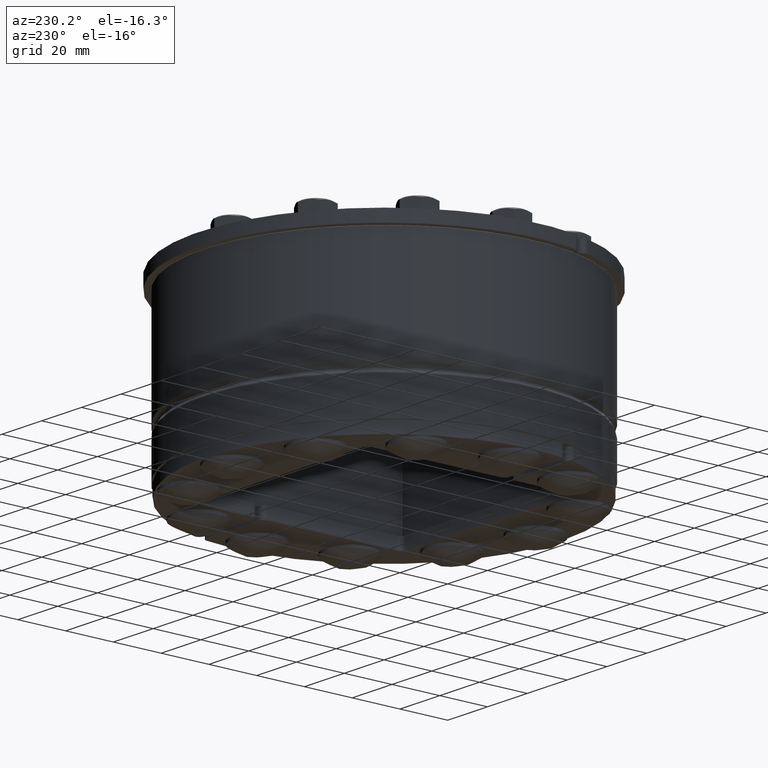
[diagram: clean part render]
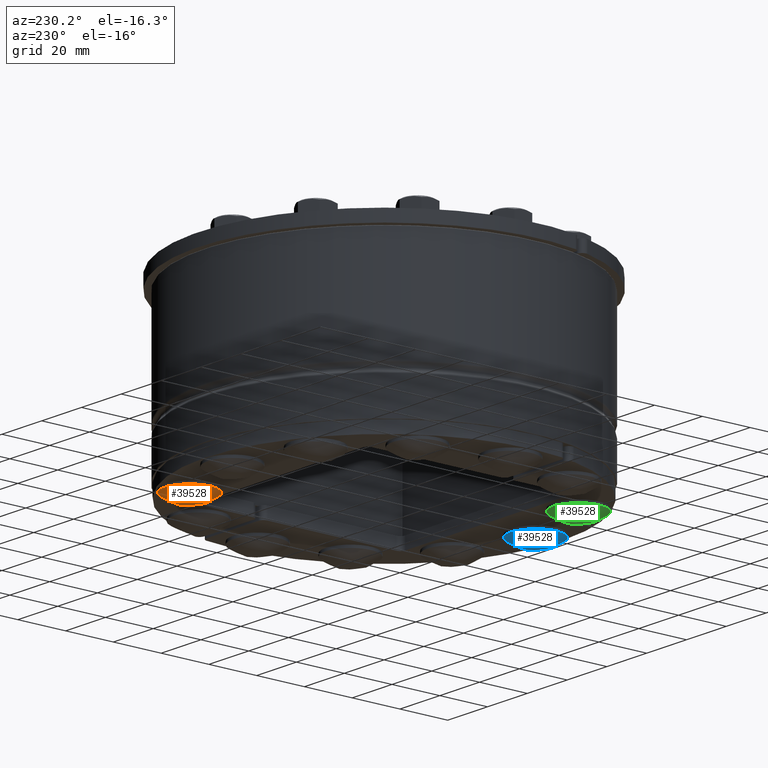
[diagram: same view with three faces highlighted in distinct colors, each labeled with its STEP entity id]
A machine part, auxiliary view with three faces highlighted in distinct colors.
Their STEP definitions:

[orange] entity #39528 — the highlighted spherical surface has radius 16 mm.
#39512=CARTESIAN_POINT('',(11.120000000000005,0.0,0.0));
#39513=DIRECTION('',(0.0,0.0,1.0));
#39514=DIRECTION('',(1.0,0.0,0.0));
#39515=AXIS2_PLACEMENT_3D('',#39512,#39513,#39514);
#39516=SPHERICAL_SURFACE('',#39515,16.000000000000004);
#39517=CARTESIAN_POINT('',(-1.102699169986955,10.325000000000003,0.0));
#39518=VERTEX_POINT('',#39517);
#39519=CARTESIAN_POINT('',(-1.102699169986963,4.389809E-033,0.0));
#39520=DIRECTION('',(1.0,0.0,0.0));
#39521=DIRECTION('',(0.0,1.0,0.0));
#39522=AXIS2_PLACEMENT_3D('',#39519,#39520,#39521);
#39523=CIRCLE('',#39522,10.325000000000003);
#39524=EDGE_CURVE('',#39518,#39518,#39523,.T.);
#39525=ORIENTED_EDGE('',*,*,#39524,.F.);
#39526=EDGE_LOOP('',(#39525));
#39527=FACE_OUTER_BOUND('',#39526,.T.);
#39528=ADVANCED_FACE('',(#39527),#39516,.T.);

[blue] entity #39528 — the highlighted spherical surface has radius 16 mm.
#39512=CARTESIAN_POINT('',(11.120000000000005,0.0,0.0));
#39513=DIRECTION('',(0.0,0.0,1.0));
#39514=DIRECTION('',(1.0,0.0,0.0));
#39515=AXIS2_PLACEMENT_3D('',#39512,#39513,#39514);
#39516=SPHERICAL_SURFACE('',#39515,16.000000000000004);
#39517=CARTESIAN_POINT('',(-1.102699169986955,10.325000000000003,0.0));
#39518=VERTEX_POINT('',#39517);
#39519=CARTESIAN_POINT('',(-1.102699169986963,4.389809E-033,0.0));
#39520=DIRECTION('',(1.0,0.0,0.0));
#39521=DIRECTION('',(0.0,1.0,0.0));
#39522=AXIS2_PLACEMENT_3D('',#39519,#39520,#39521);
#39523=CIRCLE('',#39522,10.325000000000003);
#39524=EDGE_CURVE('',#39518,#39518,#39523,.T.);
#39525=ORIENTED_EDGE('',*,*,#39524,.F.);
#39526=EDGE_LOOP('',(#39525));
#39527=FACE_OUTER_BOUND('',#39526,.T.);
#39528=ADVANCED_FACE('',(#39527),#39516,.T.);

[green] entity #39528 — the highlighted spherical surface has radius 16 mm.
#39512=CARTESIAN_POINT('',(11.120000000000005,0.0,0.0));
#39513=DIRECTION('',(0.0,0.0,1.0));
#39514=DIRECTION('',(1.0,0.0,0.0));
#39515=AXIS2_PLACEMENT_3D('',#39512,#39513,#39514);
#39516=SPHERICAL_SURFACE('',#39515,16.000000000000004);
#39517=CARTESIAN_POINT('',(-1.102699169986955,10.325000000000003,0.0));
#39518=VERTEX_POINT('',#39517);
#39519=CARTESIAN_POINT('',(-1.102699169986963,4.389809E-033,0.0));
#39520=DIRECTION('',(1.0,0.0,0.0));
#39521=DIRECTION('',(0.0,1.0,0.0));
#39522=AXIS2_PLACEMENT_3D('',#39519,#39520,#39521);
#39523=CIRCLE('',#39522,10.325000000000003);
#39524=EDGE_CURVE('',#39518,#39518,#39523,.T.);
#39525=ORIENTED_EDGE('',*,*,#39524,.F.);
#39526=EDGE_LOOP('',(#39525));
#39527=FACE_OUTER_BOUND('',#39526,.T.);
#39528=ADVANCED_FACE('',(#39527),#39516,.T.);